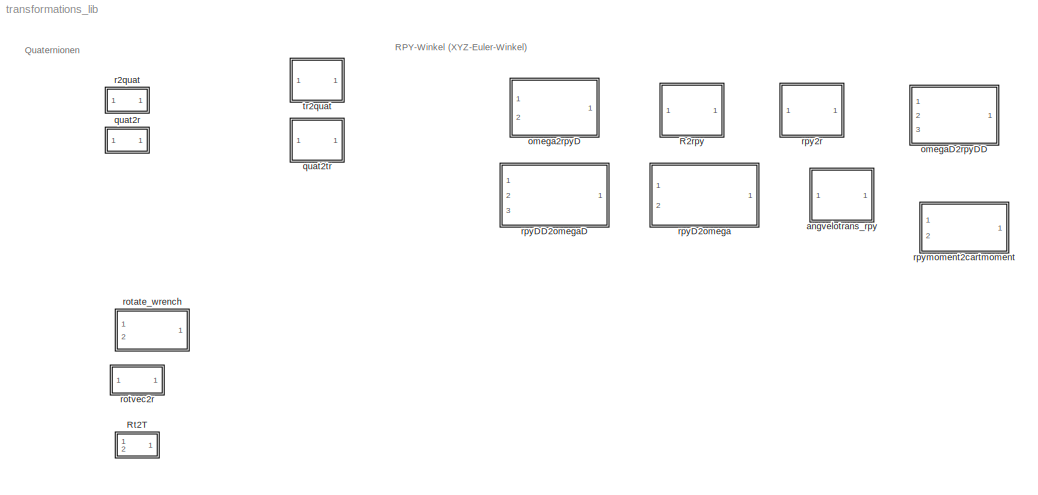
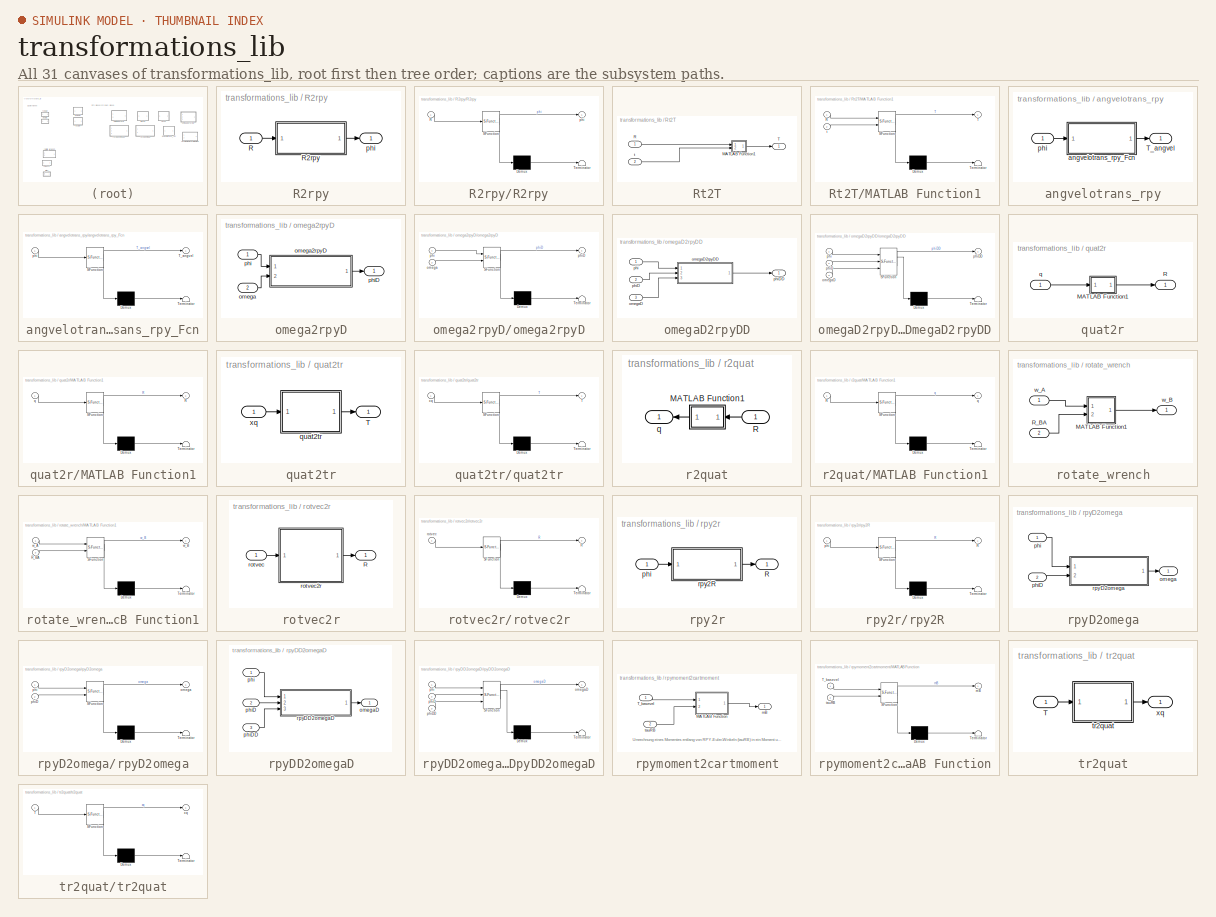
[diagram: thumbnail index - all 31 canvases of the model, root first then tree order]
MODEL transformations_lib
KIND library
BLOCK [SubSystem] R2rpy
  Ports = [1, 1]
  RequestExecContextInheritance = off
  SID = 41
BLOCK [Inport] R2rpy/R
  IconDisplay = Port number
  PortDimensions = [3 3]
  SID = 42
BLOCK [SubSystem] R2rpy/R2rpy
  ErrorFcn = Stateflow.Translate.translate
  PermitHierarchicalResolution = ExplicitOnly
  Ports = [1, 1]
  RequestExecContextInheritance = off
  SFBlockType = MATLAB Function
  SID = 30
  TreatAsAtomicUnit = on
BLOCK [Demux] R2rpy/R2rpy/ Demux 
  Outputs = 1
  Ports = [1, 1]
  SID = 30::30
BLOCK [S-Function] R2rpy/R2rpy/ SFunction 
  FunctionName = sf_sfun
  PortCounts = [1 2]
  Ports = [1, 2]
  SID = 30::29
  Tag = Stateflow S-Function transformations_lib 20
BLOCK [Terminator] R2rpy/R2rpy/ Terminator 
  SID = 30::31
BLOCK [Inport] R2rpy/R2rpy/R
  IconDisplay = Port number
  SID = 30::20
BLOCK [Outport] R2rpy/R2rpy/phi
  IconDisplay = Port number
  SID = 30::28
BLOCK [Outport] R2rpy/phi
  IconDisplay = Port number
  PortDimensions = 3
  SID = 43
BLOCK [SubSystem] Rt2T
  Ports = [2, 1]
  RequestExecContextInheritance = off
  SID = 23
BLOCK [SubSystem] Rt2T/MATLAB Function1
  ErrorFcn = Stateflow.Translate.translate
  PermitHierarchicalResolution = ExplicitOnly
  Ports = [2, 1]
  RequestExecContextInheritance = off
  SFBlockType = MATLAB Function
  SID = 25
  TreatAsAtomicUnit = on
BLOCK [Demux] Rt2T/MATLAB Function1/ Demux 
  Outputs = 1
  Ports = [1, 1]
  SID = 25::23
BLOCK [S-Function] Rt2T/MATLAB Function1/ SFunction 
  FunctionName = sf_sfun
  PortCounts = [2 2]
  Ports = [2, 2]
  SID = 25::22
  Tag = Stateflow S-Function transformations_lib 5
BLOCK [Terminator] Rt2T/MATLAB Function1/ Terminator 
  SID = 25::24
BLOCK [Inport] Rt2T/MATLAB Function1/R
  IconDisplay = Port number
  SID = 25::1
BLOCK [Outport] Rt2T/MATLAB Function1/T
  IconDisplay = Port number
  SID = 25::5
BLOCK [Inport] Rt2T/MATLAB Function1/t
  IconDisplay = Port number
  Port = 2
  SID = 25::25
BLOCK [Inport] Rt2T/R
  IconDisplay = Port number
  PortDimensions = [3 3]
  SID = 24
BLOCK [Outport] Rt2T/T
  IconDisplay = Port number
  PortDimensions = [4 4]
  SID = 26
BLOCK [Inport] Rt2T/t
  IconDisplay = Port number
  Port = 2
  PortDimensions = 3
  SID = 27
BLOCK [SubSystem] angvelotrans_rpy
  Ports = [1, 1]
  RequestExecContextInheritance = off
  SID = 55
BLOCK [Outport] angvelotrans_rpy/T_angvel
  IconDisplay = Port number
  PortDimensions = [3 3]
  SID = 58
BLOCK [SubSystem] angvelotrans_rpy/angvelotrans_rpy_Fcn
  ErrorFcn = Stateflow.Translate.translate
  PermitHierarchicalResolution = ExplicitOnly
  Ports = [1, 1]
  RequestExecContextInheritance = off
  SFBlockType = MATLAB Function
  SID = 57
  TreatAsAtomicUnit = on
BLOCK [Demux] angvelotrans_rpy/angvelotrans_rpy_Fcn/ Demux 
  Outputs = 1
  Ports = [1, 1]
  SID = 57::38
BLOCK [S-Function] angvelotrans_rpy/angvelotrans_rpy_Fcn/ SFunction 
  FunctionName = sf_sfun
  PortCounts = [1 2]
  Ports = [1, 2]
  SID = 57::37
  Tag = Stateflow S-Function transformations_lib 9
BLOCK [Terminator] angvelotrans_rpy/angvelotrans_rpy_Fcn/ Terminator 
  SID = 57::39
BLOCK [Outport] angvelotrans_rpy/angvelotrans_rpy_Fcn/T_angvel
  IconDisplay = Port number
  SID = 57::36
BLOCK [Inport] angvelotrans_rpy/angvelotrans_rpy_Fcn/phi
  IconDisplay = Port number
  SID = 57::35
BLOCK [Inport] angvelotrans_rpy/phi
  IconDisplay = Port number
  PortDimensions = 3
  SID = 56
BLOCK [SubSystem] omega2rpyD
  Ports = [2, 1]
  RequestExecContextInheritance = off
  SID = 31
BLOCK [Inport] omega2rpyD/omega
  IconDisplay = Port number
  Port = 2
  PortDimensions = 3
  SID = 33
BLOCK [SubSystem] omega2rpyD/omega2rpyD
  ErrorFcn = Stateflow.Translate.translate
  PermitHierarchicalResolution = ExplicitOnly
  Ports = [2, 1]
  RequestExecContextInheritance = off
  SFBlockType = MATLAB Function
  SID = 28
  TreatAsAtomicUnit = on
BLOCK [Demux] omega2rpyD/omega2rpyD/ Demux 
  Outputs = 1
  Ports = [1, 1]
  SID = 28::26
BLOCK [S-Function] omega2rpyD/omega2rpyD/ SFunction 
  FunctionName = sf_sfun
  PortCounts = [2 2]
  Ports = [2, 2]
  SID = 28::25
  Tag = Stateflow S-Function transformations_lib 19
BLOCK [Terminator] omega2rpyD/omega2rpyD/ Terminator 
  SID = 28::27
BLOCK [Inport] omega2rpyD/omega2rpyD/omega
  IconDisplay = Port number
  Port = 2
  SID = 28::20
BLOCK [Inport] omega2rpyD/omega2rpyD/phi
  IconDisplay = Port number
  SID = 28::1
BLOCK [Outport] omega2rpyD/omega2rpyD/phiD
  IconDisplay = Port number
  SID = 28::24
BLOCK [Inport] omega2rpyD/phi
  IconDisplay = Port number
  PortDimensions = 3
  SID = 32
BLOCK [Outport] omega2rpyD/phiD
  IconDisplay = Port number
  PortDimensions = 3
  SID = 34
BLOCK [SubSystem] omegaD2rpyDD
  Ports = [3, 1]
  RequestExecContextInheritance = off
  SID = 59
BLOCK [Inport] omegaD2rpyDD/omegaD
  IconDisplay = Port number
  Port = 3
  PortDimensions = 3
  SID = 61
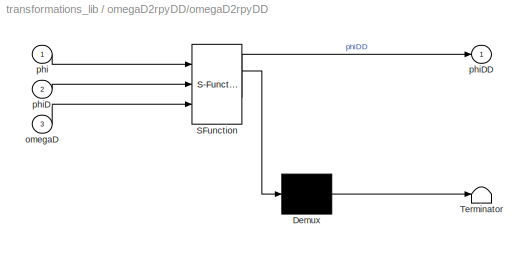
BLOCK [SubSystem] omegaD2rpyDD/omegaD2rpyDD
  ErrorFcn = Stateflow.Translate.translate
  PermitHierarchicalResolution = ExplicitOnly
  Ports = [3, 1]
  RequestExecContextInheritance = off
  SFBlockType = MATLAB Function
  SID = 62
  TreatAsAtomicUnit = on
BLOCK [Demux] omegaD2rpyDD/omegaD2rpyDD/ Demux 
  Outputs = 1
  Ports = [1, 1]
  SID = 62::41
BLOCK [S-Function] omegaD2rpyDD/omegaD2rpyDD/ SFunction 
  FunctionName = sf_sfun
  PortCounts = [3 2]
  Ports = [3, 2]
  SID = 62::40
  Tag = Stateflow S-Function transformations_lib 10
BLOCK [Terminator] omegaD2rpyDD/omegaD2rpyDD/ Terminator 
  SID = 62::42
BLOCK [Inport] omegaD2rpyDD/omegaD2rpyDD/omegaD
  IconDisplay = Port number
  Port = 3
  SID = 62::20
BLOCK [Inport] omegaD2rpyDD/omegaD2rpyDD/phi
  IconDisplay = Port number
  SID = 62::1
BLOCK [Inport] omegaD2rpyDD/omegaD2rpyDD/phiD
  IconDisplay = Port number
  Port = 2
  SID = 62::43
BLOCK [Outport] omegaD2rpyDD/omegaD2rpyDD/phiDD
  IconDisplay = Port number
  SID = 62::44
BLOCK [Inport] omegaD2rpyDD/phi
  IconDisplay = Port number
  PortDimensions = 3
  SID = 60
BLOCK [Inport] omegaD2rpyDD/phiD
  IconDisplay = Port number
  Port = 2
  PortDimensions = 3
  SID = 64
BLOCK [Outport] omegaD2rpyDD/phiDD
  IconDisplay = Port number
  PortDimensions = 3
  SID = 63
BLOCK [SubSystem] quat2r
  Ports = [1, 1]
  RequestExecContextInheritance = off
  SID = 9
BLOCK [SubSystem] quat2r/MATLAB Function1
  ErrorFcn = Stateflow.Translate.translate
  PermitHierarchicalResolution = ExplicitOnly
  Ports = [1, 1]
  RequestExecContextInheritance = off
  SFBlockType = MATLAB Function
  SID = 11
  TreatAsAtomicUnit = on
BLOCK [Demux] quat2r/MATLAB Function1/ Demux 
  Outputs = 1
  Ports = [1, 1]
  SID = 11::23
BLOCK [S-Function] quat2r/MATLAB Function1/ SFunction 
  FunctionName = sf_sfun
  PortCounts = [1 2]
  Ports = [1, 2]
  SID = 11::22
  Tag = Stateflow S-Function transformations_lib 1
BLOCK [Terminator] quat2r/MATLAB Function1/ Terminator 
  SID = 11::24
BLOCK [Outport] quat2r/MATLAB Function1/R
  IconDisplay = Port number
  SID = 11::26
BLOCK [Inport] quat2r/MATLAB Function1/q
  IconDisplay = Port number
  SID = 11::25
BLOCK [Outport] quat2r/R
  IconDisplay = Port number
  PortDimensions = [3 3]
  SID = 12
BLOCK [Inport] quat2r/q
  IconDisplay = Port number
  PortDimensions = 4
  SID = 10
BLOCK [SubSystem] quat2tr
  Ports = [1, 1]
  RequestExecContextInheritance = off
  SID = 71
BLOCK [Outport] quat2tr/T
  IconDisplay = Port number
  PortDimensions = [4 4]
  SID = 74
BLOCK [SubSystem] quat2tr/quat2tr
  ErrorFcn = Stateflow.Translate.translate
  PermitHierarchicalResolution = ExplicitOnly
  Ports = [1, 1]
  RequestExecContextInheritance = off
  SFBlockType = MATLAB Function
  SID = 73
  TreatAsAtomicUnit = on
BLOCK [Demux] quat2tr/quat2tr/ Demux 
  Outputs = 1
  Ports = [1, 1]
  SID = 73::45
BLOCK [S-Function] quat2tr/quat2tr/ SFunction 
  FunctionName = sf_sfun
  PortCounts = [1 2]
  Ports = [1, 2]
  SID = 73::44
  Tag = Stateflow S-Function transformations_lib 12
BLOCK [Terminator] quat2tr/quat2tr/ Terminator 
  SID = 73::46
BLOCK [Outport] quat2tr/quat2tr/T
  IconDisplay = Port number
  SID = 73::48
BLOCK [Inport] quat2tr/quat2tr/xq
  IconDisplay = Port number
  SID = 73::47
BLOCK [Inport] quat2tr/xq
  IconDisplay = Port number
  PortDimensions = [1 7]
  SID = 72
BLOCK [SubSystem] r2quat
  Ports = [1, 1]
  RequestExecContextInheritance = off
  SID = 5
BLOCK [SubSystem] r2quat/MATLAB Function1
  ErrorFcn = Stateflow.Translate.translate
  PermitHierarchicalResolution = ExplicitOnly
  Ports = [1, 1]
  RequestExecContextInheritance = off
  SFBlockType = MATLAB Function
  SID = 7
  TreatAsAtomicUnit = on
BLOCK [Demux] r2quat/MATLAB Function1/ Demux 
  Outputs = 1
  Ports = [1, 1]
  SID = 7::20
BLOCK [S-Function] r2quat/MATLAB Function1/ SFunction 
  FunctionName = sf_sfun
  PortCounts = [1 2]
  Ports = [1, 2]
  SID = 7::19
  Tag = Stateflow S-Function transformations_lib 3
BLOCK [Terminator] r2quat/MATLAB Function1/ Terminator 
  SID = 7::21
BLOCK [Inport] r2quat/MATLAB Function1/R
  IconDisplay = Port number
  SID = 7::1
BLOCK [Outport] r2quat/MATLAB Function1/q
  IconDisplay = Port number
  SID = 7::5
BLOCK [Inport] r2quat/R
  IconDisplay = Port number
  PortDimensions = [3 3]
  SID = 6
BLOCK [Outport] r2quat/q
  IconDisplay = Port number
  PortDimensions = 4
  SID = 8
BLOCK [SubSystem] rotate_wrench
  Ports = [2, 1]
  RequestExecContextInheritance = off
  SID = 13
BLOCK [SubSystem] rotate_wrench/MATLAB Function1
  ErrorFcn = Stateflow.Translate.translate
  PermitHierarchicalResolution = ExplicitOnly
  Ports = [2, 1]
  RequestExecContextInheritance = off
  SFBlockType = MATLAB Function
  SID = 15
  TreatAsAtomicUnit = on
BLOCK [Demux] rotate_wrench/MATLAB Function1/ Demux 
  Outputs = 1
  Ports = [1, 1]
  SID = 15::33
BLOCK [S-Function] rotate_wrench/MATLAB Function1/ SFunction 
  FunctionName = sf_sfun
  PortCounts = [2 2]
  Ports = [2, 2]
  SID = 15::32
  Tag = Stateflow S-Function transformations_lib 4
BLOCK [Terminator] rotate_wrench/MATLAB Function1/ Terminator 
  SID = 15::34
BLOCK [Inport] rotate_wrench/MATLAB Function1/R_BA
  IconDisplay = Port number
  Port = 2
  SID = 15::35
BLOCK [Inport] rotate_wrench/MATLAB Function1/w_A
  IconDisplay = Port number
  SID = 15::25
BLOCK [Outport] rotate_wrench/MATLAB Function1/w_B
  IconDisplay = Port number
  SID = 15::26
BLOCK [Inport] rotate_wrench/R_BA
  IconDisplay = Port number
  Port = 2
  PortDimensions = [3 3]
  SID = 17
BLOCK [Inport] rotate_wrench/w_A
  IconDisplay = Port number
  PortDimensions = 6
  SID = 14
BLOCK [Outport] rotate_wrench/w_B
  IconDisplay = Port number
  PortDimensions = 6
  SID = 16
BLOCK [SubSystem] rotvec2r
  Ports = [1, 1]
  RequestExecContextInheritance = off
  SID = 19
BLOCK [Outport] rotvec2r/R
  IconDisplay = Port number
  SID = 21
BLOCK [Inport] rotvec2r/rotvec
  IconDisplay = Port number
  SID = 20
BLOCK [SubSystem] rotvec2r/rotvec2r
  ErrorFcn = Stateflow.Translate.translate
  PermitHierarchicalResolution = ExplicitOnly
  Ports = [1, 1]
  RequestExecContextInheritance = off
  SFBlockType = MATLAB Function
  SID = 18
  TreatAsAtomicUnit = on
BLOCK [Demux] rotvec2r/rotvec2r/ Demux 
  Outputs = 1
  Ports = [1, 1]
  SID = 18::65
BLOCK [S-Function] rotvec2r/rotvec2r/ SFunction 
  FunctionName = sf_sfun
  PortCounts = [1 2]
  Ports = [1, 2]
  SID = 18::64
  Tag = Stateflow S-Function transformations_lib 6
BLOCK [Terminator] rotvec2r/rotvec2r/ Terminator 
  SID = 18::66
BLOCK [Outport] rotvec2r/rotvec2r/R
  IconDisplay = Port number
  SID = 18::5
BLOCK [Inport] rotvec2r/rotvec2r/rotvec
  IconDisplay = Port number
  SID = 18::1
BLOCK [SubSystem] rpy2r
  Ports = [1, 1]
  RequestExecContextInheritance = off
  SID = 45
BLOCK [Outport] rpy2r/R
  IconDisplay = Port number
  SID = 48
BLOCK [Inport] rpy2r/phi
  IconDisplay = Port number
  SID = 46
BLOCK [SubSystem] rpy2r/rpy2R
  ErrorFcn = Stateflow.Translate.translate
  PermitHierarchicalResolution = ExplicitOnly
  Ports = [1, 1]
  RequestExecContextInheritance = off
  SFBlockType = MATLAB Function
  SID = 47
  TreatAsAtomicUnit = on
BLOCK [Demux] rpy2r/rpy2R/ Demux 
  Outputs = 1
  Ports = [1, 1]
  SID = 47::33
BLOCK [S-Function] rpy2r/rpy2R/ SFunction 
  FunctionName = sf_sfun
  PortCounts = [1 2]
  Ports = [1, 2]
  SID = 47::32
  Tag = Stateflow S-Function transformations_lib 7
BLOCK [Terminator] rpy2r/rpy2R/ Terminator 
  SID = 47::34
BLOCK [Outport] rpy2r/rpy2R/R
  IconDisplay = Port number
  SID = 47::36
BLOCK [Inport] rpy2r/rpy2R/phi
  IconDisplay = Port number
  SID = 47::35
BLOCK [SubSystem] rpyD2omega
  Ports = [2, 1]
  RequestExecContextInheritance = off
  SID = 49
BLOCK [Outport] rpyD2omega/omega
  IconDisplay = Port number
  PortDimensions = 3
  SID = 54
BLOCK [Inport] rpyD2omega/phi
  IconDisplay = Port number
  SID = 50
BLOCK [Inport] rpyD2omega/phiD
  IconDisplay = Port number
  Port = 2
  SID = 51
BLOCK [SubSystem] rpyD2omega/rpyD2omega
  ErrorFcn = Stateflow.Translate.translate
  PermitHierarchicalResolution = ExplicitOnly
  Ports = [2, 1]
  RequestExecContextInheritance = off
  SFBlockType = MATLAB Function
  SID = 53
  TreatAsAtomicUnit = on
BLOCK [Demux] rpyD2omega/rpyD2omega/ Demux 
  Outputs = 1
  Ports = [1, 1]
  SID = 53::25
BLOCK [S-Function] rpyD2omega/rpyD2omega/ SFunction 
  FunctionName = sf_sfun
  PortCounts = [2 2]
  Ports = [2, 2]
  SID = 53::24
  Tag = Stateflow S-Function transformations_lib 8
BLOCK [Terminator] rpyD2omega/rpyD2omega/ Terminator 
  SID = 53::26
BLOCK [Outport] rpyD2omega/rpyD2omega/omega
  IconDisplay = Port number
  SID = 53::5
BLOCK [Inport] rpyD2omega/rpyD2omega/phi
  IconDisplay = Port number
  SID = 53::1
BLOCK [Inport] rpyD2omega/rpyD2omega/phiD
  IconDisplay = Port number
  Port = 2
  SID = 53::19
BLOCK [SubSystem] rpyDD2omegaD
  Ports = [3, 1]
  RequestExecContextInheritance = off
  SID = 36
BLOCK [Outport] rpyDD2omegaD/omegaD
  IconDisplay = Port number
  PortDimensions = 3
  SID = 40
BLOCK [Inport] rpyDD2omegaD/phi
  IconDisplay = Port number
  SID = 37
BLOCK [Inport] rpyDD2omegaD/phiD
  IconDisplay = Port number
  Port = 2
  SID = 38
BLOCK [Inport] rpyDD2omegaD/phiDD
  IconDisplay = Port number
  Port = 3
  SID = 39
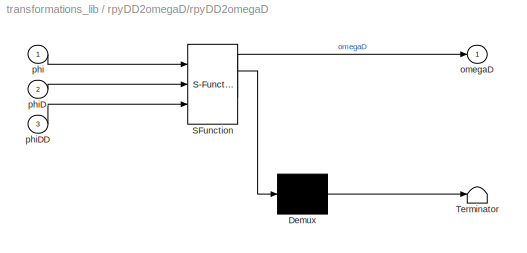
BLOCK [SubSystem] rpyDD2omegaD/rpyDD2omegaD
  ErrorFcn = Stateflow.Translate.translate
  PermitHierarchicalResolution = ExplicitOnly
  Ports = [3, 1]
  RequestExecContextInheritance = off
  SFBlockType = MATLAB Function
  SID = 29
  TreatAsAtomicUnit = on
BLOCK [Demux] rpyDD2omegaD/rpyDD2omegaD/ Demux 
  Outputs = 1
  Ports = [1, 1]
  SID = 29::22
BLOCK [S-Function] rpyDD2omegaD/rpyDD2omegaD/ SFunction 
  FunctionName = sf_sfun
  PortCounts = [3 2]
  Ports = [3, 2]
  SID = 29::21
  Tag = Stateflow S-Function transformations_lib 18
BLOCK [Terminator] rpyDD2omegaD/rpyDD2omegaD/ Terminator 
  SID = 29::23
BLOCK [Outport] rpyDD2omegaD/rpyDD2omegaD/omegaD
  IconDisplay = Port number
  SID = 29::5
BLOCK [Inport] rpyDD2omegaD/rpyDD2omegaD/phi
  IconDisplay = Port number
  SID = 29::1
BLOCK [Inport] rpyDD2omegaD/rpyDD2omegaD/phiD
  IconDisplay = Port number
  Port = 2
  SID = 29::19
BLOCK [Inport] rpyDD2omegaD/rpyDD2omegaD/phiDD
  IconDisplay = Port number
  Port = 3
  SID = 29::20
BLOCK [SubSystem] rpymoment2cartmoment
  Ports = [2, 1]
  RequestExecContextInheritance = off
  SID = 66
BLOCK [SubSystem] rpymoment2cartmoment/MATLAB Function
  ErrorFcn = Stateflow.Translate.translate
  PermitHierarchicalResolution = ExplicitOnly
  Ports = [2, 1]
  RequestExecContextInheritance = off
  SFBlockType = MATLAB Function
  SID = 65
  TreatAsAtomicUnit = on
BLOCK [Demux] rpymoment2cartmoment/MATLAB Function/ Demux 
  Outputs = 1
  Ports = [1, 1]
  SID = 65::17
BLOCK [S-Function] rpymoment2cartmoment/MATLAB Function/ SFunction 
  FunctionName = sf_sfun
  PortCounts = [2 2]
  Ports = [2, 2]
  SID = 65::16
  Tag = Stateflow S-Function transformations_lib 11
BLOCK [Terminator] rpymoment2cartmoment/MATLAB Function/ Terminator 
  SID = 65::18
BLOCK [Inport] rpymoment2cartmoment/MATLAB Function/T_basevel
  IconDisplay = Port number
  SID = 65::1
BLOCK [Outport] rpymoment2cartmoment/MATLAB Function/mB
  IconDisplay = Port number
  SID = 65::5
BLOCK [Inport] rpymoment2cartmoment/MATLAB Function/tauRB
  IconDisplay = Port number
  Port = 2
  SID = 65::19
BLOCK [Inport] rpymoment2cartmoment/T_basevel
  IconDisplay = Port number
  PortDimensions = [3 3]
  SID = 67
BLOCK [Outport] rpymoment2cartmoment/mB
  IconDisplay = Port number
  PortDimensions = 3
  SID = 69
BLOCK [Inport] rpymoment2cartmoment/tauRB
  IconDisplay = Port number
  Port = 2
  PortDimensions = 3
  SID = 68
BLOCK [SubSystem] tr2quat
  Ports = [1, 1]
  RequestExecContextInheritance = off
  SID = 2
BLOCK [Inport] tr2quat/T
  IconDisplay = Port number
  PortDimensions = [4 4]
  SID = 3
BLOCK [SubSystem] tr2quat/tr2quat
  ErrorFcn = Stateflow.Translate.translate
  PermitHierarchicalResolution = ExplicitOnly
  Ports = [1, 1]
  RequestExecContextInheritance = off
  SFBlockType = MATLAB Function
  SID = 1
  TreatAsAtomicUnit = on
BLOCK [Demux] tr2quat/tr2quat/ Demux 
  Outputs = 1
  Ports = [1, 1]
  SID = 1::17
BLOCK [S-Function] tr2quat/tr2quat/ SFunction 
  FunctionName = sf_sfun
  PortCounts = [1 2]
  Ports = [1, 2]
  SID = 1::16
  Tag = Stateflow S-Function transformations_lib 2
BLOCK [Terminator] tr2quat/tr2quat/ Terminator 
  SID = 1::18
BLOCK [Inport] tr2quat/tr2quat/T
  IconDisplay = Port number
  SID = 1::1
BLOCK [Outport] tr2quat/tr2quat/xq
  IconDisplay = Port number
  SID = 1::5
BLOCK [Outport] tr2quat/xq
  IconDisplay = Port number
  PortDimensions = 7
  SID = 4
ANNOTATION (root): Quaternionen
ANNOTATION (root): RPY-Winkel (XYZ-Euler-Winkel)
ANNOTATION rpymoment2cartmoment: Umrechnung eines Momentes entlang von RPY-Euler-Winkeln (tauRB) in ein Moment um die kartesischen Koordinaten (mB)
LINE R2rpy/R2rpy/ Demux :1 -> R2rpy/R2rpy/ Terminator :1
LINE R2rpy/R2rpy/ SFunction :1 -> R2rpy/R2rpy/ Demux :1
LINE R2rpy/R2rpy/ SFunction :2 -> R2rpy/R2rpy/phi:1
LINE R2rpy/R2rpy/R:1 -> R2rpy/R2rpy/ SFunction :1
LINE R2rpy/R2rpy:1 -> R2rpy/phi:1
LINE R2rpy/R:1 -> R2rpy/R2rpy:1
LINE Rt2T/MATLAB Function1/ Demux :1 -> Rt2T/MATLAB Function1/ Terminator :1
LINE Rt2T/MATLAB Function1/ SFunction :1 -> Rt2T/MATLAB Function1/ Demux :1
LINE Rt2T/MATLAB Function1/ SFunction :2 -> Rt2T/MATLAB Function1/T:1
LINE Rt2T/MATLAB Function1/R:1 -> Rt2T/MATLAB Function1/ SFunction :1
LINE Rt2T/MATLAB Function1/t:1 -> Rt2T/MATLAB Function1/ SFunction :2
LINE Rt2T/MATLAB Function1:1 -> Rt2T/T:1
LINE Rt2T/R:1 -> Rt2T/MATLAB Function1:1
LINE Rt2T/t:1 -> Rt2T/MATLAB Function1:2
LINE angvelotrans_rpy/angvelotrans_rpy_Fcn/ Demux :1 -> angvelotrans_rpy/angvelotrans_rpy_Fcn/ Terminator :1
LINE angvelotrans_rpy/angvelotrans_rpy_Fcn/ SFunction :1 -> angvelotrans_rpy/angvelotrans_rpy_Fcn/ Demux :1
LINE angvelotrans_rpy/angvelotrans_rpy_Fcn/ SFunction :2 -> angvelotrans_rpy/angvelotrans_rpy_Fcn/T_angvel:1
LINE angvelotrans_rpy/angvelotrans_rpy_Fcn/phi:1 -> angvelotrans_rpy/angvelotrans_rpy_Fcn/ SFunction :1
LINE angvelotrans_rpy/angvelotrans_rpy_Fcn:1 -> angvelotrans_rpy/T_angvel:1
LINE angvelotrans_rpy/phi:1 -> angvelotrans_rpy/angvelotrans_rpy_Fcn:1
LINE omega2rpyD/omega2rpyD/ Demux :1 -> omega2rpyD/omega2rpyD/ Terminator :1
LINE omega2rpyD/omega2rpyD/ SFunction :1 -> omega2rpyD/omega2rpyD/ Demux :1
LINE omega2rpyD/omega2rpyD/ SFunction :2 -> omega2rpyD/omega2rpyD/phiD:1
LINE omega2rpyD/omega2rpyD/omega:1 -> omega2rpyD/omega2rpyD/ SFunction :2
LINE omega2rpyD/omega2rpyD/phi:1 -> omega2rpyD/omega2rpyD/ SFunction :1
LINE omega2rpyD/omega2rpyD:1 -> omega2rpyD/phiD:1
LINE omega2rpyD/omega:1 -> omega2rpyD/omega2rpyD:2
LINE omega2rpyD/phi:1 -> omega2rpyD/omega2rpyD:1
LINE omegaD2rpyDD/omegaD2rpyDD/ Demux :1 -> omegaD2rpyDD/omegaD2rpyDD/ Terminator :1
LINE omegaD2rpyDD/omegaD2rpyDD/ SFunction :1 -> omegaD2rpyDD/omegaD2rpyDD/ Demux :1
LINE omegaD2rpyDD/omegaD2rpyDD/ SFunction :2 -> omegaD2rpyDD/omegaD2rpyDD/phiDD:1
LINE omegaD2rpyDD/omegaD2rpyDD/omegaD:1 -> omegaD2rpyDD/omegaD2rpyDD/ SFunction :3
LINE omegaD2rpyDD/omegaD2rpyDD/phi:1 -> omegaD2rpyDD/omegaD2rpyDD/ SFunction :1
LINE omegaD2rpyDD/omegaD2rpyDD/phiD:1 -> omegaD2rpyDD/omegaD2rpyDD/ SFunction :2
LINE omegaD2rpyDD/omegaD2rpyDD:1 -> omegaD2rpyDD/phiDD:1
LINE omegaD2rpyDD/omegaD:1 -> omegaD2rpyDD/omegaD2rpyDD:3
LINE omegaD2rpyDD/phi:1 -> omegaD2rpyDD/omegaD2rpyDD:1
LINE omegaD2rpyDD/phiD:1 -> omegaD2rpyDD/omegaD2rpyDD:2
LINE quat2r/MATLAB Function1/ Demux :1 -> quat2r/MATLAB Function1/ Terminator :1
LINE quat2r/MATLAB Function1/ SFunction :1 -> quat2r/MATLAB Function1/ Demux :1
LINE quat2r/MATLAB Function1/ SFunction :2 -> quat2r/MATLAB Function1/R:1
LINE quat2r/MATLAB Function1/q:1 -> quat2r/MATLAB Function1/ SFunction :1
LINE quat2r/MATLAB Function1:1 -> quat2r/R:1
LINE quat2r/q:1 -> quat2r/MATLAB Function1:1
LINE quat2tr/quat2tr/ Demux :1 -> quat2tr/quat2tr/ Terminator :1
LINE quat2tr/quat2tr/ SFunction :1 -> quat2tr/quat2tr/ Demux :1
LINE quat2tr/quat2tr/ SFunction :2 -> quat2tr/quat2tr/T:1
LINE quat2tr/quat2tr/xq:1 -> quat2tr/quat2tr/ SFunction :1
LINE quat2tr/quat2tr:1 -> quat2tr/T:1
LINE quat2tr/xq:1 -> quat2tr/quat2tr:1
LINE r2quat/MATLAB Function1/ Demux :1 -> r2quat/MATLAB Function1/ Terminator :1
LINE r2quat/MATLAB Function1/ SFunction :1 -> r2quat/MATLAB Function1/ Demux :1
LINE r2quat/MATLAB Function1/ SFunction :2 -> r2quat/MATLAB Function1/q:1
LINE r2quat/MATLAB Function1/R:1 -> r2quat/MATLAB Function1/ SFunction :1
LINE r2quat/MATLAB Function1:1 -> r2quat/q:1
LINE r2quat/R:1 -> r2quat/MATLAB Function1:1
LINE rotate_wrench/MATLAB Function1/ Demux :1 -> rotate_wrench/MATLAB Function1/ Terminator :1
LINE rotate_wrench/MATLAB Function1/ SFunction :1 -> rotate_wrench/MATLAB Function1/ Demux :1
LINE rotate_wrench/MATLAB Function1/ SFunction :2 -> rotate_wrench/MATLAB Function1/w_B:1
LINE rotate_wrench/MATLAB Function1/R_BA:1 -> rotate_wrench/MATLAB Function1/ SFunction :2
LINE rotate_wrench/MATLAB Function1/w_A:1 -> rotate_wrench/MATLAB Function1/ SFunction :1
LINE rotate_wrench/MATLAB Function1:1 -> rotate_wrench/w_B:1
LINE rotate_wrench/R_BA:1 -> rotate_wrench/MATLAB Function1:2
LINE rotate_wrench/w_A:1 -> rotate_wrench/MATLAB Function1:1
LINE rotvec2r/rotvec2r/ Demux :1 -> rotvec2r/rotvec2r/ Terminator :1
LINE rotvec2r/rotvec2r/ SFunction :1 -> rotvec2r/rotvec2r/ Demux :1
LINE rotvec2r/rotvec2r/ SFunction :2 -> rotvec2r/rotvec2r/R:1
LINE rotvec2r/rotvec2r/rotvec:1 -> rotvec2r/rotvec2r/ SFunction :1
LINE rotvec2r/rotvec2r:1 -> rotvec2r/R:1
LINE rotvec2r/rotvec:1 -> rotvec2r/rotvec2r:1
LINE rpy2r/phi:1 -> rpy2r/rpy2R:1
LINE rpy2r/rpy2R/ Demux :1 -> rpy2r/rpy2R/ Terminator :1
LINE rpy2r/rpy2R/ SFunction :1 -> rpy2r/rpy2R/ Demux :1
LINE rpy2r/rpy2R/ SFunction :2 -> rpy2r/rpy2R/R:1
LINE rpy2r/rpy2R/phi:1 -> rpy2r/rpy2R/ SFunction :1
LINE rpy2r/rpy2R:1 -> rpy2r/R:1
LINE rpyD2omega/phi:1 -> rpyD2omega/rpyD2omega:1
LINE rpyD2omega/phiD:1 -> rpyD2omega/rpyD2omega:2
LINE rpyD2omega/rpyD2omega/ Demux :1 -> rpyD2omega/rpyD2omega/ Terminator :1
LINE rpyD2omega/rpyD2omega/ SFunction :1 -> rpyD2omega/rpyD2omega/ Demux :1
LINE rpyD2omega/rpyD2omega/ SFunction :2 -> rpyD2omega/rpyD2omega/omega:1
LINE rpyD2omega/rpyD2omega/phi:1 -> rpyD2omega/rpyD2omega/ SFunction :1
LINE rpyD2omega/rpyD2omega/phiD:1 -> rpyD2omega/rpyD2omega/ SFunction :2
LINE rpyD2omega/rpyD2omega:1 -> rpyD2omega/omega:1
LINE rpyDD2omegaD/phi:1 -> rpyDD2omegaD/rpyDD2omegaD:1
LINE rpyDD2omegaD/phiD:1 -> rpyDD2omegaD/rpyDD2omegaD:2
LINE rpyDD2omegaD/phiDD:1 -> rpyDD2omegaD/rpyDD2omegaD:3
LINE rpyDD2omegaD/rpyDD2omegaD/ Demux :1 -> rpyDD2omegaD/rpyDD2omegaD/ Terminator :1
LINE rpyDD2omegaD/rpyDD2omegaD/ SFunction :1 -> rpyDD2omegaD/rpyDD2omegaD/ Demux :1
LINE rpyDD2omegaD/rpyDD2omegaD/ SFunction :2 -> rpyDD2omegaD/rpyDD2omegaD/omegaD:1
LINE rpyDD2omegaD/rpyDD2omegaD/phi:1 -> rpyDD2omegaD/rpyDD2omegaD/ SFunction :1
LINE rpyDD2omegaD/rpyDD2omegaD/phiD:1 -> rpyDD2omegaD/rpyDD2omegaD/ SFunction :2
LINE rpyDD2omegaD/rpyDD2omegaD/phiDD:1 -> rpyDD2omegaD/rpyDD2omegaD/ SFunction :3
LINE rpyDD2omegaD/rpyDD2omegaD:1 -> rpyDD2omegaD/omegaD:1
LINE rpymoment2cartmoment/MATLAB Function/ Demux :1 -> rpymoment2cartmoment/MATLAB Function/ Terminator :1
LINE rpymoment2cartmoment/MATLAB Function/ SFunction :1 -> rpymoment2cartmoment/MATLAB Function/ Demux :1
LINE rpymoment2cartmoment/MATLAB Function/ SFunction :2 -> rpymoment2cartmoment/MATLAB Function/mB:1
LINE rpymoment2cartmoment/MATLAB Function/T_basevel:1 -> rpymoment2cartmoment/MATLAB Function/ SFunction :1
LINE rpymoment2cartmoment/MATLAB Function/tauRB:1 -> rpymoment2cartmoment/MATLAB Function/ SFunction :2
LINE rpymoment2cartmoment/MATLAB Function:1 -> rpymoment2cartmoment/mB:1
LINE rpymoment2cartmoment/T_basevel:1 -> rpymoment2cartmoment/MATLAB Function:1
LINE rpymoment2cartmoment/tauRB:1 -> rpymoment2cartmoment/MATLAB Function:2
LINE tr2quat/T:1 -> tr2quat/tr2quat:1
LINE tr2quat/tr2quat/ Demux :1 -> tr2quat/tr2quat/ Terminator :1
LINE tr2quat/tr2quat/ SFunction :1 -> tr2quat/tr2quat/ Demux :1
LINE tr2quat/tr2quat/ SFunction :2 -> tr2quat/tr2quat/xq:1
LINE tr2quat/tr2quat/T:1 -> tr2quat/tr2quat/ SFunction :1
LINE tr2quat/tr2quat:1 -> tr2quat/xq:1
CHART quat2r/MATLAB Function1 states=1 transitions=1
  STATE_LABEL 'eML_blk_kernel()'
CHART tr2quat/tr2quat states=1 transitions=1
  STATE_LABEL 'eML_blk_kernel()'
CHART r2quat/MATLAB Function1 states=1 transitions=1
  STATE_LABEL 'eML_blk_kernel()'
CHART rotate_wrench/MATLAB Function1 states=1 transitions=1
  STATE_LABEL 'eML_blk_kernel()'
CHART Rt2T/MATLAB Function1 states=1 transitions=1
  STATE_LABEL 'eML_blk_kernel()'
CHART rotvec2r/rotvec2r states=1 transitions=1
  STATE_LABEL 'eML_blk_kernel()'
CHART rpy2r/rpy2R states=1 transitions=1
  STATE_LABEL 'eML_blk_kernel()'
CHART rpyD2omega/rpyD2omega states=1 transitions=1
  STATE_LABEL 'eML_blk_kernel()'
CHART angvelotrans_rpy/angvelotrans_rpy_Fcn states=1 transitions=1
  STATE_LABEL 'eML_blk_kernel()'
CHART omegaD2rpyDD/omegaD2rpyDD states=1 transitions=1
  STATE_LABEL 'eML_blk_kernel()'
CHART rpymoment2cartmoment/MATLAB Function states=1 transitions=1
  STATE_LABEL 'eML_blk_kernel()'
CHART quat2tr/quat2tr states=1 transitions=1
  STATE_LABEL 'eML_blk_kernel()'
CHART rpyDD2omegaD/rpyDD2omegaD states=1 transitions=1
  STATE_LABEL 'eML_blk_kernel()'
CHART omega2rpyD/omega2rpyD states=1 transitions=1
  STATE_LABEL 'eML_blk_kernel()'
CHART R2rpy/R2rpy states=1 transitions=1
  STATE_LABEL 'eML_blk_kernel()'
